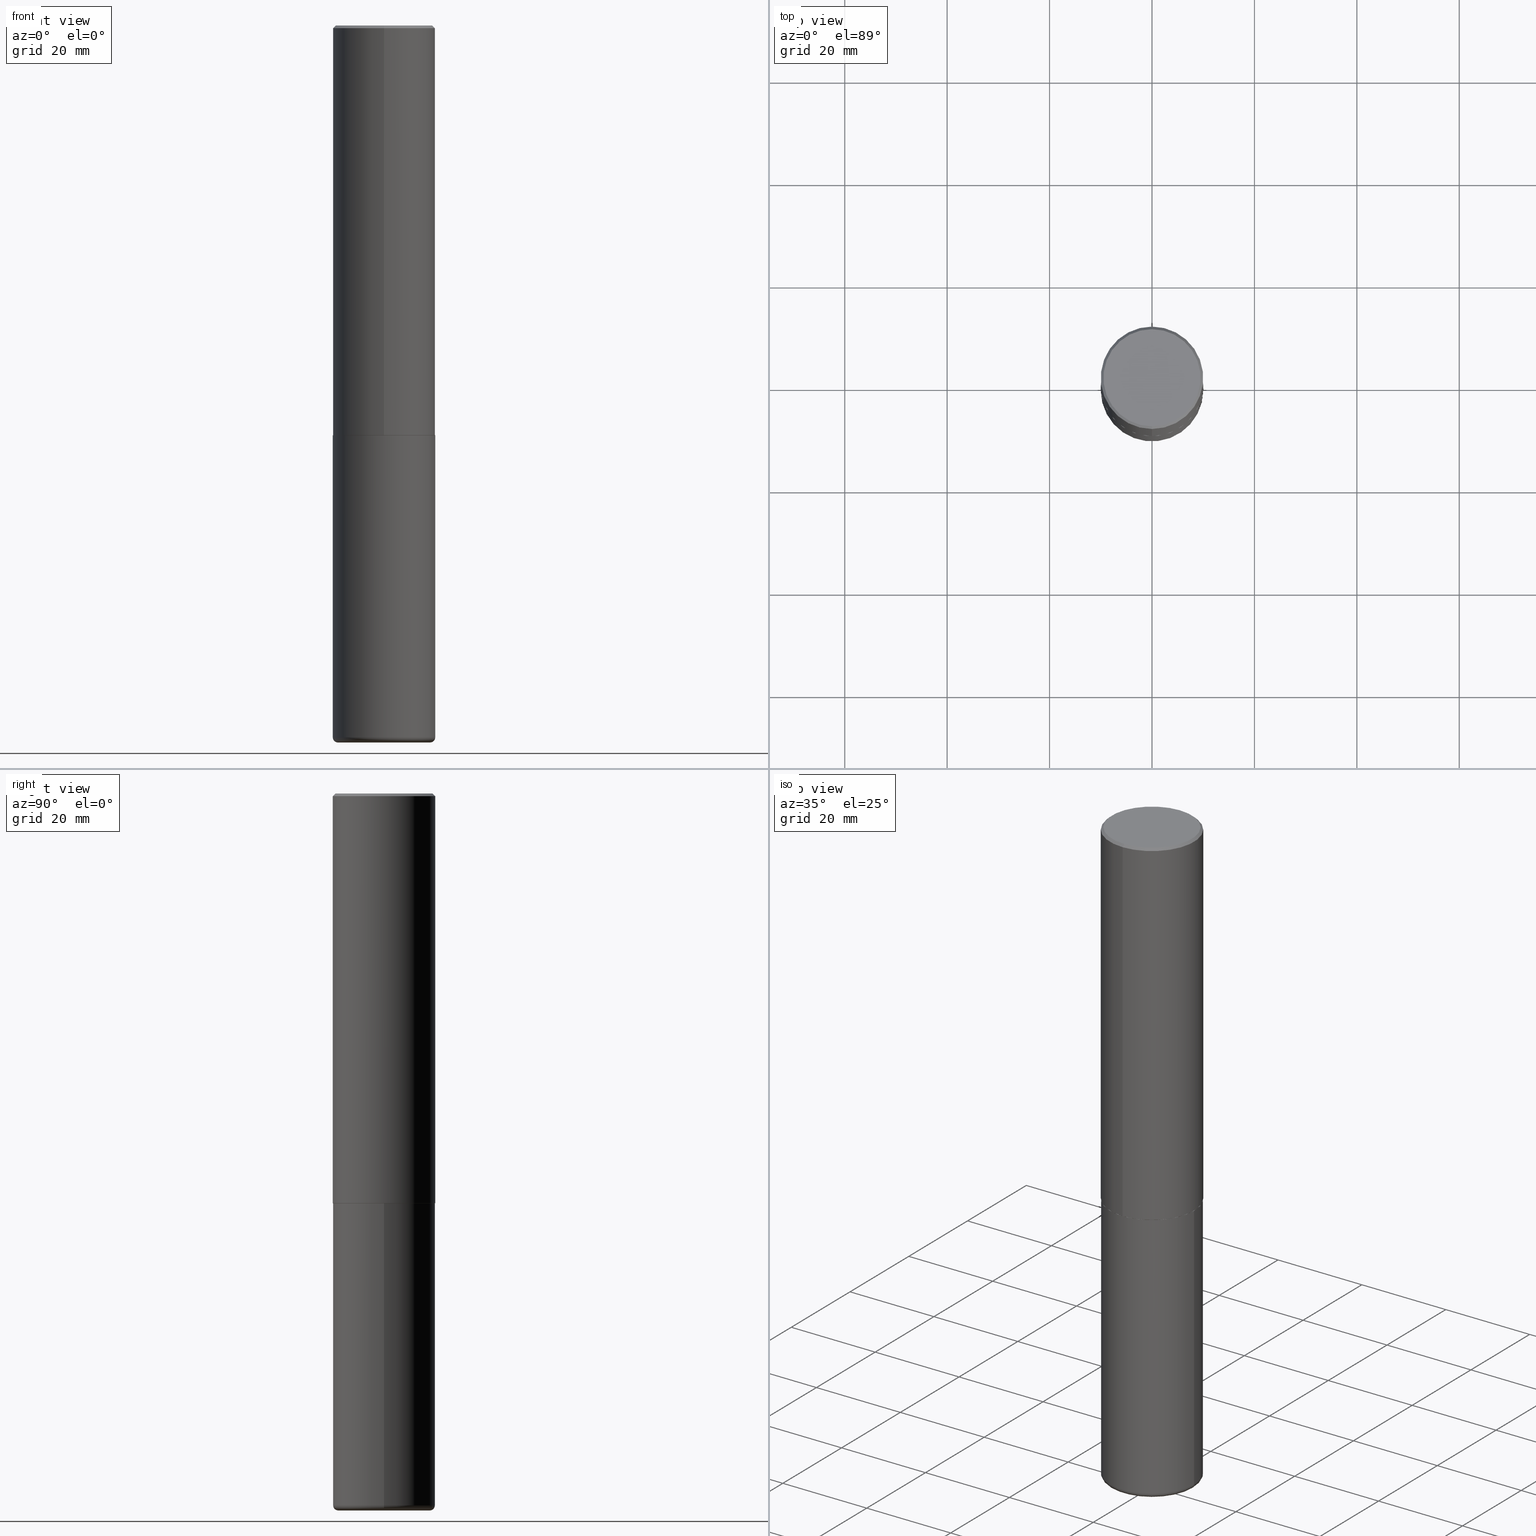
[diagram: canonical four-view strip — front | top / right | iso, engineering-drawing reading convention]
A machine part, canonical four-view strip (front | top / right | iso — engineering-drawing reading convention). The complete STEP part file that produces these views, byte-faithful:
ISO-10303-21;
HEADER;
FILE_DESCRIPTION (( 'STEP AP203' ),
    '1' );
FILE_NAME ('47585.STEP',
    '2024-03-06T19:41:49',
    ( '' ),
    ( '' ),
    'SwSTEP 2.0',
    'SolidWorks 2023',
    '' );
FILE_SCHEMA (( 'CONFIG_CONTROL_DESIGN' ));
ENDSEC;

DATA;
#1 = PERSON_AND_ORGANIZATION ( #56, #207 ) ;
#2 = DIRECTION ( 'NONE',  ( -6.982962677686265922E-15, -1.000000000000000000, 3.488399002831325748E-15 ) ) ;
#3 = MANIFOLD_SOLID_BREP ( 'Body-Move/Copy2[2]', #150 ) ;
#4 = ADVANCED_FACE ( 'NONE', ( #46 ), #269, .T. ) ;
#5 = APPROVAL_STATUS ( 'not_yet_approved' ) ;
#6 = ORIENTED_EDGE ( 'NONE', *, *, #195, .F. ) ;
#7 = CALENDAR_DATE ( 2024, 6, 3 ) ;
#8 = ORIENTED_EDGE ( 'NONE', *, *, #382, .T. ) ;
#9 = CIRCLE ( 'NONE', #110, 0.3936999999999998834 ) ;
#10 = DIRECTION ( 'NONE',  ( -6.982962677686265922E-15, -1.000000000000000000, 3.488399002831326143E-15 ) ) ;
#11 = ORIENTED_EDGE ( 'NONE', *, *, #303, .F. ) ;
#12 = CARTESIAN_POINT ( 'NONE',  ( 1.338258349496754075E-28, -1.910678247868523272E-14, -5.472400000000000375 ) ) ;
#13 = CIRCLE ( 'NONE', #73, 0.03939999999999971997 ) ;
#14 = AXIS2_PLACEMENT_3D ( 'NONE', #132, #138, #328 ) ;
#15 = LOCAL_TIME ( 14, 41, 49.00000000000000000, #36 ) ;
#16 = CARTESIAN_POINT ( 'NONE',  ( 0.000000000000000000, 0.000000000000000000, 0.000000000000000000 ) ) ;
#17 = DESIGN_CONTEXT ( 'detailed design', #404, 'design' ) ;
#18 = ADVANCED_FACE ( 'NONE', ( #237 ), #141, .T. ) ;
#19 = FACE_OUTER_BOUND ( 'NONE', #215, .T. ) ;
#20 = CARTESIAN_POINT ( 'NONE',  ( -2.700978061722651647E-15, -0.3937000000000001609, -0.01999999999999869937 ) ) ;
#21 = CIRCLE ( 'NONE', #224, 0.3936999999999998834 ) ;
#22 = EDGE_CURVE ( 'NONE', #253, #160, #181, .T. ) ;
#23 = DIRECTION ( 'NONE',  ( -2.445468806185136597E-29, 3.491481338843145583E-15, 1.000000000000000000 ) ) ;
#24 = DIRECTION ( 'NONE',  ( 2.447621189918199031E-29, -3.488399002831325748E-15, -1.000000000000000000 ) ) ;
#25 = CC_DESIGN_PERSON_AND_ORGANIZATION_ASSIGNMENT ( #264, #38, ( #252 ) ) ;
#26 = VERTEX_POINT ( 'NONE', #228 ) ;
#27 = DIRECTION ( 'NONE',  ( -6.982962677686265133E-15, -1.000000000000000000, 3.491137977679279029E-15 ) ) ;
#28 = EDGE_LOOP ( 'NONE', ( #221, #348 ) ) ;
#29 = AXIS2_PLACEMENT_3D ( 'NONE', #41, #291, #2 ) ;
#30 = APPROVAL_PERSON_ORGANIZATION ( #1, #210, #326 ) ;
#31 = CARTESIAN_POINT ( 'NONE',  ( 2.793854037008791591E-15, 0.3926999999999889468, -3.149600000000000843 ) ) ;
#32 = ORIENTED_EDGE ( 'NONE', *, *, #303, .T. ) ;
#33 = DIRECTION ( 'NONE',  ( -2.447621189918199031E-29, 3.488399002831325748E-15, 1.000000000000000000 ) ) ;
#34 = ORIENTED_EDGE ( 'NONE', *, *, #52, .T. ) ;
#35 = CC_DESIGN_PERSON_AND_ORGANIZATION_ASSIGNMENT ( #75, #389, ( #172 ) ) ;
#36 = COORDINATED_UNIVERSAL_TIME_OFFSET ( 5, 0, .BEHIND. ) ;
#37 = ORIENTED_EDGE ( 'NONE', *, *, #66, .F. ) ;
#38 = PERSON_AND_ORGANIZATION_ROLE ( 'creator' ) ;
#39 = CIRCLE ( 'NONE', #118, 0.3936999999999999389 ) ;
#40 = EDGE_CURVE ( 'NONE', #26, #97, #415, .T. ) ;
#41 = CARTESIAN_POINT ( 'NONE',  ( 7.709027699766358790E-29, -1.098706149931754344E-14, -3.149599999999999511 ) ) ;
#42 = SECURITY_CLASSIFICATION_LEVEL ( 'unclassified' ) ;
#43 = CARTESIAN_POINT ( 'NONE',  ( 2.749192406205084005E-15, 0.3937000000000000499, -0.02000000000000144718 ) ) ;
#44 = CC_DESIGN_DATE_AND_TIME_ASSIGNMENT ( #385, #193, ( #172 ) ) ;
#45 = CALENDAR_DATE ( 2024, 6, 3 ) ;
#46 = FACE_OUTER_BOUND ( 'NONE', #128, .T. ) ;
#47 = DATE_AND_TIME ( #7, #402 ) ;
#48 = CARTESIAN_POINT ( 'NONE',  ( 7.702248551960704469E-29, -1.099676962482037073E-14, -3.149599999999999511 ) ) ;
#49 = ORIENTED_EDGE ( 'NONE', *, *, #300, .F. ) ;
#50 = DIRECTION ( 'NONE',  ( 7.105427357601001859E-15, 1.000000000000000000, -3.491481338843145583E-15 ) ) ;
#51 = CARTESIAN_POINT ( 'NONE',  ( 0.3936999999999999389, -1.374596203102545395E-14, -3.149599999999999511 ) ) ;
#52 = EDGE_CURVE ( 'NONE', #26, #88, #137, .T. ) ;
#53 = LOCAL_TIME ( 14, 41, 49.00000000000000000, #107 ) ;
#54 = DIRECTION ( 'NONE',  ( 1.000000000000000000, -6.982962677686262766E-15, 0.000000000000000000 ) ) ;
#55 = CC_DESIGN_PERSON_AND_ORGANIZATION_ASSIGNMENT ( #199, #416, ( #252 ) ) ;
#56 = PERSON ( 'UNSPECIFIED', 'UNSPECIFIED', 'UNSPECIFIED', ('UNSPECIFIED'), ('UNSPECIFIED'), ('UNSPECIFIED') ) ;
#57 = CARTESIAN_POINT ( 'NONE',  ( 1.347893496593123646E-28, -1.924434684343564878E-14, -5.511800000000000033 ) ) ;
#58 = CARTESIAN_POINT ( 'NONE',  ( 0.3936999999999998279, -2.185597488489031278E-14, -5.472400000000000375 ) ) ;
#59 = CONICAL_SURFACE ( 'NONE', #316, 0.3937000000000001054, 0.7853981633974472798 ) ;
#60 = APPLICATION_PROTOCOL_DEFINITION ( 'international standard', 'config_control_design', 1994, #68 ) ;
#61 = EDGE_LOOP ( 'NONE', ( #198, #282, #318, #70 ) ) ;
#62 = CARTESIAN_POINT ( 'NONE',  ( -4.046410242946616737E-45, 5.767025352895066351E-31, 1.653201181462990183E-16 ) ) ;
#63 = ORIENTED_EDGE ( 'NONE', *, *, #298, .F. ) ;
#64 = DIRECTION ( 'NONE',  ( -2.447621189918199031E-29, 3.488399002831325748E-15, 1.000000000000000000 ) ) ;
#65 = EDGE_LOOP ( 'NONE', ( #168, #226, #190, #410 ) ) ;
#66 = EDGE_CURVE ( 'NONE', #97, #203, #173, .T. ) ;
#67 = LOCAL_TIME ( 14, 41, 49.00000000000000000, #102 ) ;
#68 = APPLICATION_CONTEXT ( 'configuration controlled 3d designs of mechanical parts and assemblies' ) ;
#69 = LENGTH_MEASURE_WITH_UNIT ( LENGTH_MEASURE( 0.02539999999999999897 ), #225 );
#70 = ORIENTED_EDGE ( 'NONE', *, *, #161, .F. ) ;
#71 = EDGE_CURVE ( 'NONE', #184, #299, #309, .T. ) ;
#72 = DIRECTION ( 'NONE',  ( -2.447621189918199031E-29, 3.488399002831325748E-15, 1.000000000000000000 ) ) ;
#73 = AXIS2_PLACEMENT_3D ( 'NONE', #393, #50, #362 ) ;
#74 = DIRECTION ( 'NONE',  ( -2.447621189918199031E-29, 3.488399002831325748E-15, 1.000000000000000000 ) ) ;
#75 = PERSON_AND_ORGANIZATION ( #56, #207 ) ;
#76 = VERTEX_POINT ( 'NONE', #327 ) ;
#77 = CARTESIAN_POINT ( 'NONE',  ( 2.797406750687515575E-15, 0.3937000000000002164, -1.373382687414693916E-15 ) ) ;
#78 = DIRECTION ( 'NONE',  ( 1.000000000000000000, -6.982962677686269866E-15, 0.000000000000000000 ) ) ;
#79 = DIRECTION ( 'NONE',  ( -2.445468806185136597E-29, 3.491481338843145583E-15, 1.000000000000000000 ) ) ;
#80 = DIRECTION ( 'NONE',  ( 6.982962677686265133E-15, 1.000000000000000000, -3.491137977679279029E-15 ) ) ;
#81 = EDGE_CURVE ( 'NONE', #160, #253, #39, .T. ) ;
#82 = FACE_OUTER_BOUND ( 'NONE', #156, .T. ) ;
#83 = CC_DESIGN_APPROVAL ( #100, ( #252 ) ) ;
#84 = DIRECTION ( 'NONE',  ( 1.000000000000000000, -6.982962677686264344E-15, 4.883557194083112340E-29 ) ) ;
#85 = CARTESIAN_POINT ( 'NONE',  ( -0.3936999999999999389, 2.797406750687513998E-15, -1.936584745033356455E-29 ) ) ;
#86 = ORIENTED_EDGE ( 'NONE', *, *, #292, .F. ) ;
#87 = CYLINDRICAL_SURFACE ( 'NONE', #157, 0.3937000000000002164 ) ;
#88 = VERTEX_POINT ( 'NONE', #43 ) ;
#89 = DIRECTION ( 'NONE',  ( 6.982962677686265922E-15, 1.000000000000000000, -3.488399002831325748E-15 ) ) ;
#90 = ORIENTED_EDGE ( 'NONE', *, *, #66, .T. ) ;
#91 = DIRECTION ( 'NONE',  ( -1.000000000000000000, 6.982962677686265922E-15, -4.876176775795935793E-29 ) ) ;
#92 = EDGE_CURVE ( 'NONE', #135, #76, #151, .T. ) ;
#93 = ORIENTED_EDGE ( 'NONE', *, *, #81, .T. ) ;
#94 = TOROIDAL_SURFACE ( 'NONE', #401, 0.3542999999999999483, 0.03939999999999975466 ) ;
#95 = AXIS2_PLACEMENT_3D ( 'NONE', #345, #281, #286 ) ;
#96 = DIRECTION ( 'NONE',  ( -2.445468806185136597E-29, 3.491481338843145583E-15, 1.000000000000000000 ) ) ;
#97 = VERTEX_POINT ( 'NONE', #352 ) ;
#98 = EDGE_CURVE ( 'NONE', #88, #203, #417, .T. ) ;
#99 = ORIENTED_EDGE ( 'NONE', *, *, #275, .F. ) ;
#100 = APPROVAL ( #5, 'UNSPECIFIED' ) ;
#101 = CARTESIAN_POINT ( 'NONE',  ( 7.702248551960704469E-29, -1.099676962482037073E-14, -3.149599999999999511 ) ) ;
#102 = COORDINATED_UNIVERSAL_TIME_OFFSET ( 5, 0, .BEHIND. ) ;
#103 = CARTESIAN_POINT ( 'NONE',  ( 4.895242379836416489E-31, -6.976798005662675704E-17, -0.02000000000000007327 ) ) ;
#104 = APPROVAL_STATUS ( 'not_yet_approved' ) ;
#105 = ADVANCED_FACE ( 'NONE', ( #194 ), #324, .F. ) ;
#106 = ORIENTED_EDGE ( 'NONE', *, *, #92, .T. ) ;
#107 = COORDINATED_UNIVERSAL_TIME_OFFSET ( 5, 0, .BEHIND. ) ;
#108 = DIRECTION ( 'NONE',  ( -6.982962677686265133E-15, -1.000000000000000000, 3.488399002831325748E-15 ) ) ;
#109 = CARTESIAN_POINT ( 'NONE',  ( 7.702248551960704469E-29, -1.099676962482037073E-14, -3.149599999999999511 ) ) ;
#110 = AXIS2_PLACEMENT_3D ( 'NONE', #294, #79, #204 ) ;
#111 = ADVANCED_BREP_SHAPE_REPRESENTATION ( '47585', ( #279, #3, #14 ), #216 ) ;
#112 = UNCERTAINTY_MEASURE_WITH_UNIT (LENGTH_MEASURE( 1.000000000000000082E-05 ), #191, 'distance_accuracy_value', 'NONE');
#113 = PRODUCT ( '47585', '47585', '', ( #323 ) ) ;
#114 = CARTESIAN_POINT ( 'NONE',  ( 7.709027699766357669E-29, -1.098706149931754028E-14, -3.149599999999999067 ) ) ;
#115 = APPROVAL ( #104, 'UNSPECIFIED' ) ;
#116 = CARTESIAN_POINT ( 'NONE',  ( 0.3936999999999999389, -2.749192406205082822E-15, 1.919750796630859611E-29 ) ) ;
#117 = LINE ( 'NONE', #85, #387 ) ;
#118 = AXIS2_PLACEMENT_3D ( 'NONE', #101, #296, #78 ) ;
#119 = DIRECTION ( 'NONE',  ( 2.438088387897960049E-29, -3.491481338843145188E-15, -1.000000000000000000 ) ) ;
#120 = DIRECTION ( 'NONE',  ( -2.447621189918199031E-29, 3.488399002831325748E-15, 1.000000000000000000 ) ) ;
#121 = ORIENTED_EDGE ( 'NONE', *, *, #22, .T. ) ;
#122 = CIRCLE ( 'NONE', #342, 0.3926999999999999380 ) ;
#123 = AXIS2_PLACEMENT_3D ( 'NONE', #312, #64, #220 ) ;
#124 = EDGE_CURVE ( 'NONE', #76, #203, #230, .T. ) ;
#125 = DIRECTION ( 'NONE',  ( -2.447621189918199031E-29, 3.488399002831325748E-15, 1.000000000000000000 ) ) ;
#126 = ADVANCED_FACE ( 'NONE', ( #82 ), #94, .T. ) ;
#127 = CARTESIAN_POINT ( 'NONE',  ( 2.609533152651356620E-15, 0.3736999999999999211, -1.220954648284916602E-15 ) ) ;
#128 = EDGE_LOOP ( 'NONE', ( #280, #133, #90, #219 ) ) ;
#129 = ORIENTED_EDGE ( 'NONE', *, *, #92, .F. ) ;
#130 = CIRCLE ( 'NONE', #371, 0.3542999999999999483 ) ;
#131 = CONICAL_SURFACE ( 'NONE', #123, 0.3926999999999999380, 0.7853981633979947308 ) ;
#132 = CARTESIAN_POINT ( 'NONE',  ( 0.000000000000000000, 0.000000000000000000, 0.000000000000000000 ) ) ;
#133 = ORIENTED_EDGE ( 'NONE', *, *, #40, .T. ) ;
#134 = CALENDAR_DATE ( 2024, 6, 3 ) ;
#135 = VERTEX_POINT ( 'NONE', #148 ) ;
#136 = CALENDAR_DATE ( 2024, 6, 3 ) ;
#137 = LINE ( 'NONE', #77, #341 ) ;
#138 = DIRECTION ( 'NONE',  ( 0.000000000000000000, 0.000000000000000000, 1.000000000000000000 ) ) ;
#139 = ORIENTED_EDGE ( 'NONE', *, *, #195, .T. ) ;
#140 = CALENDAR_DATE ( 2024, 6, 3 ) ;
#141 = CYLINDRICAL_SURFACE ( 'NONE', #189, 0.3936999999999999389 ) ;
#142 = CARTESIAN_POINT ( 'NONE',  ( 0.000000000000000000, 0.000000000000000000, 0.000000000000000000 ) ) ;
#143 = VECTOR ( 'NONE', #274, 39.37007874015748143 ) ;
#144 = DIRECTION ( 'NONE',  ( -2.445468806185136597E-29, 3.491481338843145583E-15, 1.000000000000000000 ) ) ;
#145 = VECTOR ( 'NONE', #368, 39.37007874015748143 ) ;
#146 = CC_DESIGN_PERSON_AND_ORGANIZATION_ASSIGNMENT ( #171, #270, ( #322 ) ) ;
#147 = DIRECTION ( 'NONE',  ( -2.447621189918199031E-29, 3.488399002831325748E-15, 1.000000000000000000 ) ) ;
#148 = CARTESIAN_POINT ( 'NONE',  ( 2.679362779428220707E-15, 0.3736999999999999211, -1.138294589211767191E-15 ) ) ;
#149 = CYLINDRICAL_SURFACE ( 'NONE', #333, 0.3936999999999999389 ) ;
#150 = CLOSED_SHELL ( 'NONE', ( #330, #370, #238, #208, #4, #355, #105, #361 ) ) ;
#151 = CIRCLE ( 'NONE', #349, 0.3736999999999999211 ) ;
#152 = CARTESIAN_POINT ( 'NONE',  ( 0.000000000000000000, 0.000000000000000000, 0.000000000000000000 ) ) ;
#153 = PLANE ( 'NONE',  #231 ) ;
#154 = EDGE_LOOP ( 'NONE', ( #93, #121 ) ) ;
#155 = CARTESIAN_POINT ( 'NONE',  ( -2.742209443527319105E-15, -0.3927000000000109292, -3.149599999999997291 ) ) ;
#156 = EDGE_LOOP ( 'NONE', ( #63, #196, #32, #49 ) ) ;
#157 = AXIS2_PLACEMENT_3D ( 'NONE', #152, #125, #284 ) ;
#158 = FACE_OUTER_BOUND ( 'NONE', #360, .T. ) ;
#159 = ORIENTED_EDGE ( 'NONE', *, *, #229, .T. ) ;
#160 = VERTEX_POINT ( 'NONE', #51 ) ;
#161 = EDGE_CURVE ( 'NONE', #135, #88, #209, .T. ) ;
#162 = PERSON_AND_ORGANIZATION ( #56, #207 ) ;
#163 = ORIENTED_EDGE ( 'NONE', *, *, #292, .T. ) ;
#164 = AXIS2_PLACEMENT_3D ( 'NONE', #103, #72, #233 ) ;
#165 = AXIS2_PLACEMENT_3D ( 'NONE', #127, #24, #89 ) ;
#166 = APPROVAL_DATE_TIME ( #47, #115 ) ;
#167 = ORIENTED_EDGE ( 'NONE', *, *, #275, .T. ) ;
#168 = ORIENTED_EDGE ( 'NONE', *, *, #229, .F. ) ;
#169 = APPROVAL_ROLE ( '' ) ;
#170 = DIRECTION ( 'NONE',  ( -2.445468806185136597E-29, 3.491481338843145583E-15, 1.000000000000000000 ) ) ;
#171 = PERSON_AND_ORGANIZATION ( #56, #207 ) ;
#172 = SECURITY_CLASSIFICATION ( '', '', #42 ) ;
#173 = LINE ( 'NONE', #386, #394 ) ;
#174 = EDGE_LOOP ( 'NONE', ( #106, #263 ) ) ;
#175 = DIRECTION ( 'NONE',  ( -6.982962677686266711E-15, -1.000000000000000000, 3.491481338843145583E-15 ) ) ;
#176 = AXIS2_PLACEMENT_3D ( 'NONE', #369, #33, #27 ) ;
#177 = DIRECTION ( 'NONE',  ( 6.982962677686265133E-15, 1.000000000000000000, -3.491137977679279029E-15 ) ) ;
#178 = DIRECTION ( 'NONE',  ( -2.445468806185136597E-29, 3.491481338843145583E-15, 1.000000000000000000 ) ) ;
#179 = DIRECTION ( 'NONE',  ( 1.000000000000000000, -6.982962677686266711E-15, 4.876176775795935793E-29 ) ) ;
#180 = FACE_OUTER_BOUND ( 'NONE', #65, .T. ) ;
#181 = CIRCLE ( 'NONE', #379, 0.3936999999999999389 ) ;
#182 = AXIS2_PLACEMENT_3D ( 'NONE', #62, #254, #376 ) ;
#183 = CARTESIAN_POINT ( 'NONE',  ( 7.706580078576441267E-29, -1.098357310031471265E-14, -3.148600000000000065 ) ) ;
#184 = VERTEX_POINT ( 'NONE', #310 ) ;
#185 = FACE_OUTER_BOUND ( 'NONE', #174, .T. ) ;
#186 = ORIENTED_EDGE ( 'NONE', *, *, #283, .F. ) ;
#187 = FACE_OUTER_BOUND ( 'NONE', #255, .T. ) ;
#188 = ORIENTED_EDGE ( 'NONE', *, *, #212, .T. ) ;
#189 = AXIS2_PLACEMENT_3D ( 'NONE', #142, #200, #329 ) ;
#190 = ORIENTED_EDGE ( 'NONE', *, *, #283, .T. ) ;
#191 =( CONVERSION_BASED_UNIT ( 'INCH', #69 ) LENGTH_UNIT ( ) NAMED_UNIT ( #397 ) );
#192 = EDGE_LOOP ( 'NONE', ( #188, #258, #289, #11 ) ) ;
#193 = DATE_TIME_ROLE ( 'classification_date' ) ;
#194 = FACE_OUTER_BOUND ( 'NONE', #313, .T. ) ;
#195 = EDGE_CURVE ( 'NONE', #332, #26, #338, .T. ) ;
#196 = ORIENTED_EDGE ( 'NONE', *, *, #71, .T. ) ;
#197 = APPROVAL_ROLE ( '' ) ;
#198 = ORIENTED_EDGE ( 'NONE', *, *, #408, .F. ) ;
#199 = PERSON_AND_ORGANIZATION ( #56, #207 ) ;
#200 = DIRECTION ( 'NONE',  ( -2.445468806185136597E-29, 3.491481338843145583E-15, 1.000000000000000000 ) ) ;
#201 = AXIS2_PLACEMENT_3D ( 'NONE', #109, #119, #400 ) ;
#202 = APPROVAL_DATE_TIME ( #236, #100 ) ;
#203 = VERTEX_POINT ( 'NONE', #339 ) ;
#204 = DIRECTION ( 'NONE',  ( 1.000000000000000000, -6.982962677686270655E-15, 0.000000000000000000 ) ) ;
#205 = CARTESIAN_POINT ( 'NONE',  ( 0.3542999999999999483, -2.171841052013989041E-14, -5.511800000000000033 ) ) ;
#206 = DIRECTION ( 'NONE',  ( 2.447621189918199031E-29, -3.488399002831325748E-15, -1.000000000000000000 ) ) ;
#207 = ORGANIZATION ( 'UNSPECIFIED', 'UNSPECIFIED', '' ) ;
#208 = ADVANCED_FACE ( 'NONE', ( #19 ), #325, .T. ) ;
#209 = LINE ( 'NONE', #364, #223 ) ;
#210 = APPROVAL ( #331, 'UNSPECIFIED' ) ;
#211 = LINE ( 'NONE', #116, #259 ) ;
#212 = EDGE_CURVE ( 'NONE', #299, #184, #130, .T. ) ;
#213 = CARTESIAN_POINT ( 'NONE',  ( 1.338258349496754075E-28, -1.910678247868523272E-14, -5.472400000000000375 ) ) ;
#214 = AXIS2_PLACEMENT_3D ( 'NONE', #390, #353, #383 ) ;
#215 = EDGE_LOOP ( 'NONE', ( #378, #129, #344, #262 ) ) ;
#216 =( GEOMETRIC_REPRESENTATION_CONTEXT ( 3 ) GLOBAL_UNCERTAINTY_ASSIGNED_CONTEXT ( ( #112 ) ) GLOBAL_UNIT_ASSIGNED_CONTEXT ( ( #191, #343, #372 ) ) REPRESENTATION_CONTEXT ( 'NONE', 'WORKASPACE' ) );
#217 = ADVANCED_FACE ( 'NONE', ( #398 ), #366, .F. ) ;
#218 = CARTESIAN_POINT ( 'NONE',  ( -0.3936999999999998279, -1.630937572799772188E-14, -5.472400000000000375 ) ) ;
#219 = ORIENTED_EDGE ( 'NONE', *, *, #98, .F. ) ;
#220 = DIRECTION ( 'NONE',  ( -6.982962677686265133E-15, -1.000000000000000000, 4.173946514383901751E-15 ) ) ;
#221 = ORIENTED_EDGE ( 'NONE', *, *, #212, .F. ) ;
#222 = ADVANCED_FACE ( 'NONE', ( #180 ), #149, .T. ) ;
#223 = VECTOR ( 'NONE', #277, 39.37007874015748143 ) ;
#224 = AXIS2_PLACEMENT_3D ( 'NONE', #213, #96, #256 ) ;
#225 =( LENGTH_UNIT ( ) NAMED_UNIT ( * ) SI_UNIT ( $, .METRE. ) );
#226 = ORIENTED_EDGE ( 'NONE', *, *, #300, .T. ) ;
#227 = PERSON_AND_ORGANIZATION_ROLE ( 'design_owner' ) ;
#228 = CARTESIAN_POINT ( 'NONE',  ( 2.797406750687554229E-15, 0.3936999999999892808, -3.148600000000001398 ) ) ;
#229 = EDGE_CURVE ( 'NONE', #374, #253, #117, .T. ) ;
#230 = LINE ( 'NONE', #20, #143 ) ;
#231 = AXIS2_PLACEMENT_3D ( 'NONE', #380, #409, #91 ) ;
#232 = COORDINATED_UNIVERSAL_TIME_OFFSET ( 5, 0, .BEHIND. ) ;
#233 = DIRECTION ( 'NONE',  ( -6.982962677686265133E-15, -1.000000000000000000, 3.491137977679279029E-15 ) ) ;
#234 = DATE_AND_TIME ( #140, #53 ) ;
#235 = CARTESIAN_POINT ( 'NONE',  ( 0.000000000000000000, 0.000000000000000000, 0.000000000000000000 ) ) ;
#236 = DATE_AND_TIME ( #136, #67 ) ;
#237 = FACE_OUTER_BOUND ( 'NONE', #407, .T. ) ;
#238 = ADVANCED_FACE ( 'NONE', ( #244 ), #59, .T. ) ;
#239 = AXIS2_PLACEMENT_3D ( 'NONE', #356, #301, #334 ) ;
#240 = VECTOR ( 'NONE', #399, 39.37007874015748143 ) ;
#241 = CC_DESIGN_SECURITY_CLASSIFICATION ( #172, ( #252 ) ) ;
#242 = LINE ( 'NONE', #249, #145 ) ;
#243 = DIRECTION ( 'NONE',  ( -6.982962677686265133E-15, -1.000000000000000000, 4.173946514383901751E-15 ) ) ;
#244 = FACE_OUTER_BOUND ( 'NONE', #61, .T. ) ;
#245 = AXIS2_PLACEMENT_3D ( 'NONE', #235, #74, #10 ) ;
#246 = AXIS2_PLACEMENT_3D ( 'NONE', #335, #175, #302 ) ;
#247 = CARTESIAN_POINT ( 'NONE',  ( 4.895242379836416489E-31, -6.976798005662675704E-17, -0.02000000000000007327 ) ) ;
#248 = CC_DESIGN_APPROVAL ( #210, ( #322 ) ) ;
#249 = CARTESIAN_POINT ( 'NONE',  ( -2.742209443527319105E-15, -0.3927000000000109292, -3.149599999999997291 ) ) ;
#250 = CC_DESIGN_DATE_AND_TIME_ASSIGNMENT ( #293, #268, ( #322 ) ) ;
#251 = DIRECTION ( 'NONE',  ( -6.982962677686265133E-15, -1.000000000000000000, 4.173946514383901751E-15 ) ) ;
#252 = PRODUCT_DEFINITION_FORMATION_WITH_SPECIFIED_SOURCE ( 'ANY', '', #113, .NOT_KNOWN. ) ;
#253 = VERTEX_POINT ( 'NONE', #403 ) ;
#254 = DIRECTION ( 'NONE',  ( -2.447621189918199031E-29, 3.488399002831325748E-15, 1.000000000000000000 ) ) ;
#255 = EDGE_LOOP ( 'NONE', ( #163, #139, #311, #99 ) ) ;
#256 = DIRECTION ( 'NONE',  ( 1.000000000000000000, -6.982962677686270655E-15, 0.000000000000000000 ) ) ;
#257 = ORIENTED_EDGE ( 'NONE', *, *, #40, .F. ) ;
#258 = ORIENTED_EDGE ( 'NONE', *, *, #298, .T. ) ;
#259 = VECTOR ( 'NONE', #340, 39.37007874015748143 ) ;
#260 = CIRCLE ( 'NONE', #350, 0.3937000000000002720 ) ;
#261 = SHAPE_DEFINITION_REPRESENTATION ( #375, #111 ) ;
#262 = ORIENTED_EDGE ( 'NONE', *, *, #98, .T. ) ;
#263 = ORIENTED_EDGE ( 'NONE', *, *, #408, .T. ) ;
#264 = PERSON_AND_ORGANIZATION ( #56, #207 ) ;
#265 = DIRECTION ( 'NONE',  ( -2.447621189918199031E-29, 3.488399002831325748E-15, 1.000000000000000000 ) ) ;
#266 = CLOSED_SHELL ( 'NONE', ( #18, #392, #217, #222, #126, #406 ) ) ;
#267 = APPROVAL_PERSON_ORGANIZATION ( #288, #100, #197 ) ;
#268 = DATE_TIME_ROLE ( 'creation_date' ) ;
#269 = CYLINDRICAL_SURFACE ( 'NONE', #245, 0.3937000000000002164 ) ;
#270 = PERSON_AND_ORGANIZATION_ROLE ( 'creator' ) ;
#271 = DIRECTION ( 'NONE',  ( -2.447621189918198751E-29, 3.488399002831325748E-15, 1.000000000000000000 ) ) ;
#272 = DIRECTION ( 'NONE',  ( -2.447621189918199031E-29, 3.488399002831325748E-15, 1.000000000000000000 ) ) ;
#273 = LOCAL_TIME ( 14, 41, 49.00000000000000000, #357 ) ;
#274 = DIRECTION ( 'NONE',  ( -4.851104656540958753E-15, -0.7071067811865492381, -0.7071067811865457964 ) ) ;
#275 = EDGE_CURVE ( 'NONE', #321, #97, #242, .T. ) ;
#276 = DIRECTION ( 'NONE',  ( -6.982962677686265133E-15, -1.000000000000000000, 4.173946514383901751E-15 ) ) ;
#277 = DIRECTION ( 'NONE',  ( 4.937700262164542520E-15, 0.7071067811865443531, -0.7071067811865506814 ) ) ;
#278 = DIRECTION ( 'NONE',  ( -2.445468806185136877E-29, 3.491481338843145188E-15, 1.000000000000000000 ) ) ;
#279 = MANIFOLD_SOLID_BREP ( 'Body-Move/Copy2[1]', #266 ) ;
#280 = ORIENTED_EDGE ( 'NONE', *, *, #52, .F. ) ;
#281 = DIRECTION ( 'NONE',  ( -2.445468806185136597E-29, 3.491481338843145583E-15, 1.000000000000000000 ) ) ;
#282 = ORIENTED_EDGE ( 'NONE', *, *, #124, .T. ) ;
#283 = EDGE_CURVE ( 'NONE', #287, #160, #211, .T. ) ;
#284 = DIRECTION ( 'NONE',  ( -6.982962677686265922E-15, -1.000000000000000000, 3.488399002831326143E-15 ) ) ;
#285 = ORIENTED_EDGE ( 'NONE', *, *, #314, .F. ) ;
#286 = DIRECTION ( 'NONE',  ( 1.000000000000000000, -6.982962677686264344E-15, 4.883557194083112340E-29 ) ) ;
#287 = VERTEX_POINT ( 'NONE', #58 ) ;
#288 = PERSON_AND_ORGANIZATION ( #56, #207 ) ;
#289 = ORIENTED_EDGE ( 'NONE', *, *, #367, .F. ) ;
#290 = CIRCLE ( 'NONE', #365, 0.3926999999999999380 ) ;
#291 = DIRECTION ( 'NONE',  ( -2.447621189918199031E-29, 3.488399002831325748E-15, 1.000000000000000000 ) ) ;
#292 = EDGE_CURVE ( 'NONE', #321, #332, #290, .T. ) ;
#293 = DATE_AND_TIME ( #134, #273 ) ;
#294 = CARTESIAN_POINT ( 'NONE',  ( 1.338258349496754075E-28, -1.910678247868523272E-14, -5.472400000000000375 ) ) ;
#295 = APPLICATION_PROTOCOL_DEFINITION ( 'international standard', 'config_control_design', 1994, #404 ) ;
#296 = DIRECTION ( 'NONE',  ( -2.445468806185136597E-29, 3.491481338843145583E-15, 1.000000000000000000 ) ) ;
#297 = APPROVAL_PERSON_ORGANIZATION ( #162, #115, #169 ) ;
#298 = EDGE_CURVE ( 'NONE', #184, #374, #13, .T. ) ;
#299 = VERTEX_POINT ( 'NONE', #205 ) ;
#300 = EDGE_CURVE ( 'NONE', #374, #287, #9, .T. ) ;
#301 = DIRECTION ( 'NONE',  ( -2.447621189918199031E-29, 3.488399002831325748E-15, 1.000000000000000000 ) ) ;
#302 = DIRECTION ( 'NONE',  ( 1.000000000000000000, -6.982962677686279332E-15, 0.000000000000000000 ) ) ;
#303 = EDGE_CURVE ( 'NONE', #299, #287, #304, .T. ) ;
#304 = CIRCLE ( 'NONE', #246, 0.03939999999999971997 ) ;
#305 = AXIS2_PLACEMENT_3D ( 'NONE', #315, #411, #251 ) ;
#306 = CARTESIAN_POINT ( 'NONE',  ( 2.790301323329989903E-15, 0.3926999999999889468, -3.149600000000000843 ) ) ;
#307 = DIRECTION ( 'NONE',  ( 2.447621189918199031E-29, -3.488399002831325748E-15, -1.000000000000000000 ) ) ;
#308 = EDGE_CURVE ( 'NONE', #332, #321, #122, .T. ) ;
#309 = CIRCLE ( 'NONE', #214, 0.3542999999999999483 ) ;
#310 = CARTESIAN_POINT ( 'NONE',  ( -0.3542999999999999483, -1.651813482931766843E-14, -5.511800000000000033 ) ) ;
#311 = ORIENTED_EDGE ( 'NONE', *, *, #382, .F. ) ;
#312 = CARTESIAN_POINT ( 'NONE',  ( 7.709027699766357669E-29, -1.098706149931754028E-14, -3.149599999999999067 ) ) ;
#313 = EDGE_LOOP ( 'NONE', ( #86, #412 ) ) ;
#314 = EDGE_CURVE ( 'NONE', #203, #88, #396, .T. ) ;
#315 = CARTESIAN_POINT ( 'NONE',  ( 7.709027699766357669E-29, -1.098706149931754028E-14, -3.149599999999999067 ) ) ;
#316 = AXIS2_PLACEMENT_3D ( 'NONE', #247, #307, #80 ) ;
#317 = CC_DESIGN_APPROVAL ( #115, ( #172 ) ) ;
#318 = ORIENTED_EDGE ( 'NONE', *, *, #314, .T. ) ;
#319 = PLANE ( 'NONE',  #165 ) ;
#320 = EDGE_LOOP ( 'NONE', ( #6, #346, #167, #257 ) ) ;
#321 = VERTEX_POINT ( 'NONE', #155 ) ;
#322 = PRODUCT_DEFINITION ( 'UNKNOWN', '', #252, #17 ) ;
#323 = MECHANICAL_CONTEXT ( 'NONE', #68, 'mechanical' ) ;
#324 = PLANE ( 'NONE',  #29 ) ;
#325 = CONICAL_SURFACE ( 'NONE', #381, 0.3937000000000001054, 0.7853981633974472798 ) ;
#326 = APPROVAL_ROLE ( '' ) ;
#327 = CARTESIAN_POINT ( 'NONE',  ( -2.632373081744936315E-15, -0.3736999999999999211, 1.468934825504365031E-15 ) ) ;
#328 = DIRECTION ( 'NONE',  ( 1.000000000000000000, 0.000000000000000000, 0.000000000000000000 ) ) ;
#329 = DIRECTION ( 'NONE',  ( 1.000000000000000000, -6.982962677686266711E-15, 4.876176775795935793E-29 ) ) ;
#330 = ADVANCED_FACE ( 'NONE', ( #187 ), #337, .T. ) ;
#331 = APPROVAL_STATUS ( 'not_yet_approved' ) ;
#332 = VERTEX_POINT ( 'NONE', #31 ) ;
#333 = AXIS2_PLACEMENT_3D ( 'NONE', #16, #178, #179 ) ;
#334 = DIRECTION ( 'NONE',  ( -6.982962677686265922E-15, -1.000000000000000000, 4.163344669033672479E-15 ) ) ;
#335 = CARTESIAN_POINT ( 'NONE',  ( 0.3542999999999999483, -2.158084615538947435E-14, -5.472400000000000375 ) ) ;
#336 = CARTESIAN_POINT ( 'NONE',  ( 7.709027699766357669E-29, -1.098706149931754028E-14, -3.149599999999999067 ) ) ;
#337 = CONICAL_SURFACE ( 'NONE', #305, 0.3926999999999999380, 0.7853981633979947308 ) ;
#338 = LINE ( 'NONE', #306, #240 ) ;
#339 = CARTESIAN_POINT ( 'NONE',  ( -2.700978061722651647E-15, -0.3937000000000001609, -0.01999999999999869937 ) ) ;
#340 = DIRECTION ( 'NONE',  ( -2.445468806185136877E-29, 3.491481338843145188E-15, 1.000000000000000000 ) ) ;
#341 = VECTOR ( 'NONE', #384, 39.37007874015748143 ) ;
#342 = AXIS2_PLACEMENT_3D ( 'NONE', #336, #147, #276 ) ;
#343 =( NAMED_UNIT ( * ) PLANE_ANGLE_UNIT ( ) SI_UNIT ( $, .RADIAN. ) );
#344 = ORIENTED_EDGE ( 'NONE', *, *, #161, .T. ) ;
#345 = CARTESIAN_POINT ( 'NONE',  ( 1.338258349496754075E-28, -1.910678247868523272E-14, -5.472400000000000375 ) ) ;
#346 = ORIENTED_EDGE ( 'NONE', *, *, #308, .T. ) ;
#347 = FACE_OUTER_BOUND ( 'NONE', #28, .T. ) ;
#348 = ORIENTED_EDGE ( 'NONE', *, *, #71, .F. ) ;
#349 = AXIS2_PLACEMENT_3D ( 'NONE', #391, #265, #108 ) ;
#350 = AXIS2_PLACEMENT_3D ( 'NONE', #183, #120, #405 ) ;
#351 = ORIENTED_EDGE ( 'NONE', *, *, #81, .F. ) ;
#352 = CARTESIAN_POINT ( 'NONE',  ( -2.749192406205007880E-15, -0.3937000000000113187, -3.148599999999998289 ) ) ;
#353 = DIRECTION ( 'NONE',  ( -2.445468806185136597E-29, 3.491481338843145583E-15, 1.000000000000000000 ) ) ;
#354 = APPROVAL_DATE_TIME ( #234, #210 ) ;
#355 = ADVANCED_FACE ( 'NONE', ( #377 ), #131, .T. ) ;
#356 = CARTESIAN_POINT ( 'NONE',  ( 7.706580078576441267E-29, -1.098357310031471265E-14, -3.148600000000000065 ) ) ;
#357 = COORDINATED_UNIVERSAL_TIME_OFFSET ( 5, 0, .BEHIND. ) ;
#358 = DIRECTION ( 'NONE',  ( 1.000000000000000000, -6.982962677686269866E-15, 0.000000000000000000 ) ) ;
#359 = PERSON_AND_ORGANIZATION ( #56, #207 ) ;
#360 = EDGE_LOOP ( 'NONE', ( #8, #34, #285, #37 ) ) ;
#361 = ADVANCED_FACE ( 'NONE', ( #185 ), #319, .F. ) ;
#362 = DIRECTION ( 'NONE',  ( -1.000000000000000000, 7.105427357601027102E-15, 0.000000000000000000 ) ) ;
#363 = CARTESIAN_POINT ( 'NONE',  ( 4.895242379836416489E-31, -6.976798005662675704E-17, -0.02000000000000007327 ) ) ;
#364 = CARTESIAN_POINT ( 'NONE',  ( 2.749192406205084005E-15, 0.3937000000000000499, -0.02000000000000144718 ) ) ;
#365 = AXIS2_PLACEMENT_3D ( 'NONE', #114, #272, #243 ) ;
#366 = PLANE ( 'NONE',  #201 ) ;
#367 = EDGE_CURVE ( 'NONE', #287, #374, #21, .T. ) ;
#368 = DIRECTION ( 'NONE',  ( -4.937700262167245946E-15, -0.7071067811869314879, 0.7071067811861635466 ) ) ;
#369 = CARTESIAN_POINT ( 'NONE',  ( 4.895242379836416489E-31, -6.976798005662675704E-17, -0.02000000000000007327 ) ) ;
#370 = ADVANCED_FACE ( 'NONE', ( #158 ), #87, .T. ) ;
#371 = AXIS2_PLACEMENT_3D ( 'NONE', #57, #23, #54 ) ;
#372 =( NAMED_UNIT ( * ) SI_UNIT ( $, .STERADIAN. ) SOLID_ANGLE_UNIT ( ) );
#373 = CIRCLE ( 'NONE', #182, 0.3736999999999999211 ) ;
#374 = VERTEX_POINT ( 'NONE', #218 ) ;
#375 = PRODUCT_DEFINITION_SHAPE ( 'NONE', 'NONE',  #322 ) ;
#376 = DIRECTION ( 'NONE',  ( -6.982962677686265133E-15, -1.000000000000000000, 3.488399002831325748E-15 ) ) ;
#377 = FACE_OUTER_BOUND ( 'NONE', #320, .T. ) ;
#378 = ORIENTED_EDGE ( 'NONE', *, *, #124, .F. ) ;
#379 = AXIS2_PLACEMENT_3D ( 'NONE', #48, #170, #358 ) ;
#380 = CARTESIAN_POINT ( 'NONE',  ( 1.347893496593123646E-28, -1.924434684343564878E-14, -5.511800000000000033 ) ) ;
#381 = AXIS2_PLACEMENT_3D ( 'NONE', #363, #206, #177 ) ;
#382 = EDGE_CURVE ( 'NONE', #97, #26, #260, .T. ) ;
#383 = DIRECTION ( 'NONE',  ( 1.000000000000000000, -6.982962677686262766E-15, 0.000000000000000000 ) ) ;
#384 = DIRECTION ( 'NONE',  ( -2.447621189918198751E-29, 3.488399002831325748E-15, 1.000000000000000000 ) ) ;
#385 = DATE_AND_TIME ( #45, #15 ) ;
#386 = CARTESIAN_POINT ( 'NONE',  ( -2.749192406205084400E-15, -0.3937000000000002164, 1.373382687414693916E-15 ) ) ;
#387 = VECTOR ( 'NONE', #278, 39.37007874015748143 ) ;
#388 = PRODUCT_RELATED_PRODUCT_CATEGORY ( 'detail', '', ( #113 ) ) ;
#389 = PERSON_AND_ORGANIZATION_ROLE ( 'classification_officer' ) ;
#390 = CARTESIAN_POINT ( 'NONE',  ( 1.347893496593123646E-28, -1.924434684343564878E-14, -5.511800000000000033 ) ) ;
#391 = CARTESIAN_POINT ( 'NONE',  ( -4.046410242946616737E-45, 5.767025352895066351E-31, 1.653201181462990183E-16 ) ) ;
#392 = ADVANCED_FACE ( 'NONE', ( #413 ), #418, .T. ) ;
#393 = CARTESIAN_POINT ( 'NONE',  ( -0.3542999999999999483, -1.658932956588719576E-14, -5.472400000000000375 ) ) ;
#394 = VECTOR ( 'NONE', #271, 39.37007874015748143 ) ;
#395 = CC_DESIGN_PERSON_AND_ORGANIZATION_ASSIGNMENT ( #359, #227, ( #113 ) ) ;
#396 = CIRCLE ( 'NONE', #176, 0.3937000000000001054 ) ;
#397 = DIMENSIONAL_EXPONENTS ( 1.000000000000000000, 0.000000000000000000, 0.000000000000000000, 0.000000000000000000, 0.000000000000000000, 0.000000000000000000, 0.000000000000000000 ) ;
#398 = FACE_OUTER_BOUND ( 'NONE', #154, .T. ) ;
#399 = DIRECTION ( 'NONE',  ( 5.024295867790807626E-15, 0.7071067811869363728, 0.7071067811861586616 ) ) ;
#400 = DIRECTION ( 'NONE',  ( -1.000000000000000000, 6.982962677686265922E-15, -4.876176775795935793E-29 ) ) ;
#401 = AXIS2_PLACEMENT_3D ( 'NONE', #12, #144, #84 ) ;
#402 = LOCAL_TIME ( 14, 41, 49.00000000000000000, #232 ) ;
#403 = CARTESIAN_POINT ( 'NONE',  ( -0.3936999999999999389, -1.225436930106528773E-14, -3.149599999999999511 ) ) ;
#404 = APPLICATION_CONTEXT ( 'configuration controlled 3d designs of mechanical parts and assemblies' ) ;
#405 = DIRECTION ( 'NONE',  ( -6.982962677686265922E-15, -1.000000000000000000, 4.163344669033672479E-15 ) ) ;
#406 = ADVANCED_FACE ( 'NONE', ( #347 ), #153, .T. ) ;
#407 = EDGE_LOOP ( 'NONE', ( #414, #159, #351, #186 ) ) ;
#408 = EDGE_CURVE ( 'NONE', #76, #135, #373, .T. ) ;
#409 = DIRECTION ( 'NONE',  ( 2.438088387897960049E-29, -3.491481338843145188E-15, -1.000000000000000000 ) ) ;
#410 = ORIENTED_EDGE ( 'NONE', *, *, #22, .F. ) ;
#411 = DIRECTION ( 'NONE',  ( -2.447621189918199031E-29, 3.488399002831325748E-15, 1.000000000000000000 ) ) ;
#412 = ORIENTED_EDGE ( 'NONE', *, *, #308, .F. ) ;
#413 = FACE_OUTER_BOUND ( 'NONE', #192, .T. ) ;
#414 = ORIENTED_EDGE ( 'NONE', *, *, #367, .T. ) ;
#415 = CIRCLE ( 'NONE', #239, 0.3937000000000002720 ) ;
#416 = PERSON_AND_ORGANIZATION_ROLE ( 'design_supplier' ) ;
#417 = CIRCLE ( 'NONE', #164, 0.3937000000000001054 ) ;
#418 = TOROIDAL_SURFACE ( 'NONE', #95, 0.3542999999999999483, 0.03939999999999975466 ) ;
ENDSEC;
END-ISO-10303-21;
